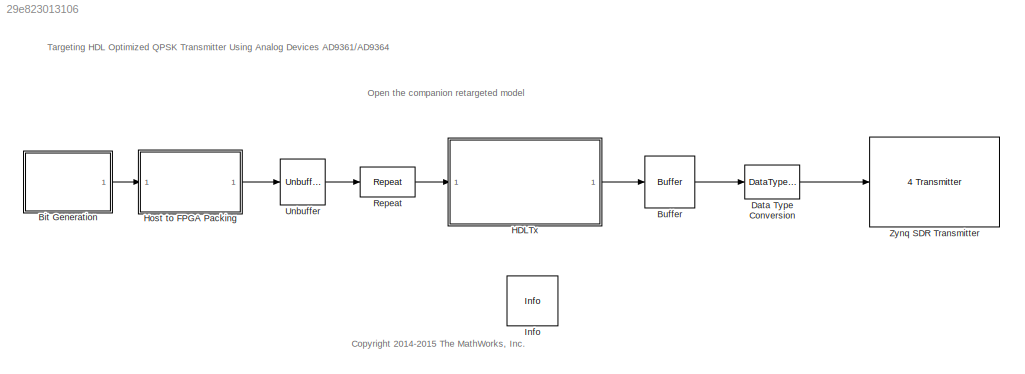
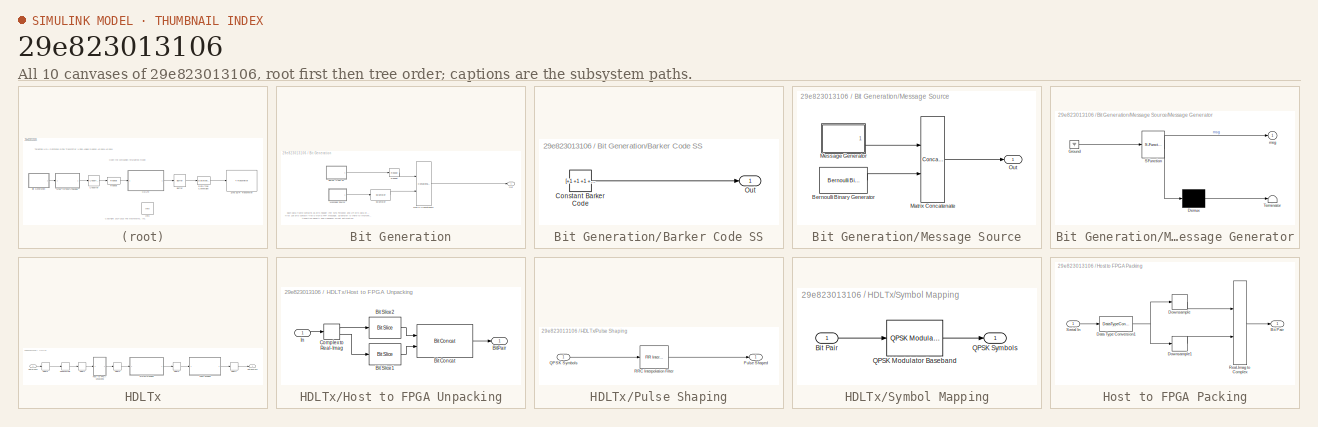
[diagram: thumbnail index - all 10 canvases of the model, root first then tree order]
MODEL slx_29e823013106
KIND model
CONFIG AbsTol = auto
CONFIG FixedStep = auto
CONFIG InitFcn = sdrzQPSKTxFPGA_params = zynqRadioQPSKTxFPGAAD9361AD9364SL_init;
CONFIG MaxStep = auto
CONFIG MinStep = auto
CONFIG PreLoadFcn = sdrzQPSKTxFPGA_params = zynqRadioQPSKTxFPGAAD9361AD9364SL_init;
CONFIG RelTol = 1e-3
CONFIG SampleTimeConstraint = Unconstrained
CONFIG Solver = FixedStepDiscrete
CONFIG SolverMode = SingleTasking
CONFIG SolverName = FixedStepDiscrete
CONFIG StartTime = 0.0
CONFIG StopTime = inf
BLOCK [SubSystem] Bit Generation
  Ports = [0, 1]
  RequestExecContextInheritance = off
  Variant = off
BLOCK [SubSystem] Bit Generation/Barker Code SS
  Ports = [0, 1]
  RequestExecContextInheritance = off
  Variant = off
BLOCK [Constant] Bit Generation/Barker Code SS/Constant Barker Code
  OutDataTypeStr = double
  Value = [+1 +1 +1 +1 +1 -1 -1 +1 +1 -1 +1 -1 +1\n].' > 0  % Bipolar to Unipolar Conversion
  VectorParams1D = off
BLOCK [Outport] Bit Generation/Barker Code SS/Out
  IconDisplay = Port number
BLOCK [Concatenate] Bit Generation/Matrix Concatenate
  Mode = Multidimensional array
  Ports = [2, 1]
BLOCK [SubSystem] Bit Generation/Message Source
  Ports = [0, 1]
  RequestExecContextInheritance = off
  Variant = off
BLOCK [Reference] Bit Generation/Message Source/Bernoulli Binary Generator  REF=commrandsrc3/Bernoulli Binary
Generator
  Ports = [0, 1]
  SourceBlock = commrandsrc3/Bernoulli Binary\nGenerator
  SourceType = Bernoulli Binary Generator
BLOCK [Concatenate] Bit Generation/Message Source/Matrix Concatenate
  Mode = Multidimensional array
  Ports = [2, 1]
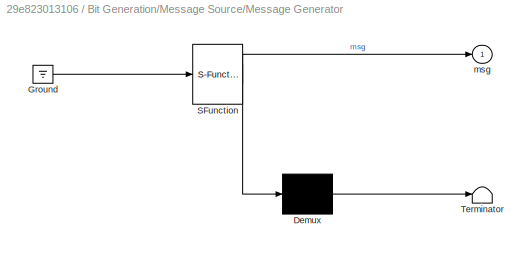
BLOCK [SubSystem] Bit Generation/Message Source/Message Generator
  ErrorFcn = Stateflow.Translate.translate
  PermitHierarchicalResolution = ExplicitOnly
  Ports = [0, 1]
  RequestExecContextInheritance = off
  SFBlockType = MATLAB Function
  TreatAsAtomicUnit = on
  Variant = off
BLOCK [Demux] Bit Generation/Message Source/Message Generator/ Demux 
  Outputs = 1
  Ports = [1, 1]
BLOCK [Ground] Bit Generation/Message Source/Message Generator/ Ground 
BLOCK [S-Function] Bit Generation/Message Source/Message Generator/ SFunction 
  EnableBusSupport = off
  FunctionName = sf_sfun
  PortCounts = [1 2]
  Ports = [1, 2]
  SFunctionDeploymentMode = off
  Tag = Stateflow S-Function zynqRadioQPSKTxFPGAAD9361AD9364SL 1
BLOCK [Terminator] Bit Generation/Message Source/Message Generator/ Terminator 
BLOCK [Outport] Bit Generation/Message Source/Message Generator/msg
  IconDisplay = Port number
BLOCK [Outport] Bit Generation/Message Source/Out
  IconDisplay = Port number
BLOCK [Outport] Bit Generation/Out
  IconDisplay = Port number
BLOCK [Reference] Bit Generation/Repeat  REF=dspsigops/Repeat
  Ports = [1, 1]
  SourceBlock = dspsigops/Repeat
  SourceType = Repeat
  UserDataPersistent = on
BLOCK [Reference] Bit Generation/Scrambler  REF=commsequence2/Scrambler
  Ports = [1, 1]
  SourceBlock = commsequence2/Scrambler
  SourceType = Scrambler
BLOCK [Buffer] Buffer
  N = 4000
  OutputFrames = off
  TreatMby1Signals = One channel
BLOCK [DataTypeConversion] Data Type Conversion
  ConvertRealWorld = Stored Integer (SI)
  OutDataTypeStr = int16
  RndMeth = Floor
  SaturateOnIntegerOverflow = off
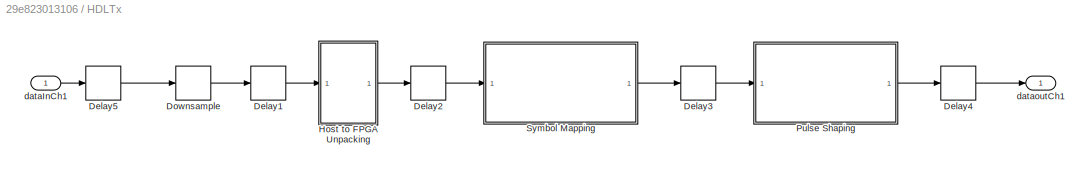
BLOCK [SubSystem] HDLTx
  Ports = [1, 1]
  RequestExecContextInheritance = off
  Variant = off
BLOCK [Delay] HDLTx/Delay1
  DelayLength = 1
  InitialCondition = 0
  InputPortMap = u0
  Ports = [1, 1]
BLOCK [Delay] HDLTx/Delay2
  DelayLength = 1
  InitialCondition = 0
  InputPortMap = u0
  Ports = [1, 1]
BLOCK [Delay] HDLTx/Delay3
  DelayLength = 1
  InitialCondition = 0
  InputPortMap = u0
  Ports = [1, 1]
BLOCK [Delay] HDLTx/Delay4
  DelayLength = 1
  InitialCondition = 0
  InputPortMap = u0
  Ports = [1, 1]
BLOCK [Delay] HDLTx/Delay5
  DelayLength = 1
  InitialCondition = 0
  InputPortMap = u0
  Ports = [1, 1]
BLOCK [DownSample] HDLTx/Downsample
  InputProcessing = Elements as channels (sample based)
  N = sdrzQPSKTxFPGA_params.Upsampling
  RateOptions = Allow multirate processing
  UserDataPersistent = on
BLOCK [SubSystem] HDLTx/Host to FPGA Unpacking
  Ports = [1, 1]
  RequestExecContextInheritance = off
  Variant = off
BLOCK [Reference] HDLTx/Host to FPGA Unpacking/Bit Concat  REF=hdlsllib/HDL Operations/Bit Concat
  Ports = [2, 1]
  SourceBlock = hdlsllib/HDL Operations/Bit Concat
  SourceType = Bit Concat
BLOCK [Reference] HDLTx/Host to FPGA Unpacking/Bit Slice1  REF=hdlsllib/HDL Operations/Bit Slice
  Ports = [1, 1]
  SourceBlock = hdlsllib/HDL Operations/Bit Slice
  SourceType = Bit Slice
BLOCK [Reference] HDLTx/Host to FPGA Unpacking/Bit Slice2  REF=hdlsllib/HDL Operations/Bit Slice
  Ports = [1, 1]
  SourceBlock = hdlsllib/HDL Operations/Bit Slice
  SourceType = Bit Slice
BLOCK [Outport] HDLTx/Host to FPGA Unpacking/BitPair
  IconDisplay = Port number
BLOCK [ComplexToRealImag] HDLTx/Host to FPGA Unpacking/Complex to Real-Imag
  Ports = [1, 2]
BLOCK [Inport] HDLTx/Host to FPGA Unpacking/In
  IconDisplay = Port number
BLOCK [SubSystem] HDLTx/Pulse Shaping
  Ports = [1, 1]
  RequestExecContextInheritance = off
  Variant = off
BLOCK [Outport] HDLTx/Pulse Shaping/Pulse Shaped
  IconDisplay = Port number
BLOCK [Inport] HDLTx/Pulse Shaping/QPSK Symbols
  IconDisplay = Port number
BLOCK [Reference] HDLTx/Pulse Shaping/RRC Interpolation Filter  REF=dspmlti4/FIR
Interpolation
  Ports = [1, 1]
  SourceBlock = dspmlti4/FIR\nInterpolation
  SourceType = FIR Interpolation
  UserDataPersistent = on
BLOCK [SubSystem] HDLTx/Symbol Mapping
  Ports = [1, 1]
  RequestExecContextInheritance = off
  Variant = off
BLOCK [Inport] HDLTx/Symbol Mapping/Bit Pair
  IconDisplay = Port number
BLOCK [Reference] HDLTx/Symbol Mapping/QPSK Modulator Baseband  REF=commdigbbndpm3/QPSK
Modulator
Baseband
  Ports = [1, 1]
  SourceBlock = commdigbbndpm3/QPSK\nModulator\nBaseband
  SourceType = QPSK Modulator Baseband
BLOCK [Outport] HDLTx/Symbol Mapping/QPSK Symbols
  IconDisplay = Port number
BLOCK [Inport] HDLTx/dataInCh1
  IconDisplay = Port number
BLOCK [Outport] HDLTx/dataoutCh1
  IconDisplay = Port number
BLOCK [SubSystem] Host to FPGA Packing
  Ports = [1, 1]
  RequestExecContextInheritance = off
  Variant = off
BLOCK [Outport] Host to FPGA Packing/Bit Pair
  IconDisplay = Port number
BLOCK [DataTypeConversion] Host to FPGA Packing/Data Type Conversion1
  OutDataTypeStr = int16
  RndMeth = Floor
  SaturateOnIntegerOverflow = off
BLOCK [DownSample] Host to FPGA Packing/Downsample
  RateOptions = Allow multirate processing
  UserDataPersistent = on
BLOCK [DownSample] Host to FPGA Packing/Downsample1
  RateOptions = Allow multirate processing
  UserDataPersistent = on
  phase = 1
BLOCK [RealImagToComplex] Host to FPGA Packing/Real-Imag to Complex
  Ports = [2, 1]
BLOCK [Inport] Host to FPGA Packing/Serial In
  IconDisplay = Port number
BLOCK [Reference] Info  REF=sdrzblksprivate/Info
  Ports = []
  SourceBlock = sdrzblksprivate/Info
  SourceType = Info
BLOCK [Reference] Repeat  REF=dspsigops/Repeat
  Ports = [1, 1]
  SourceBlock = dspsigops/Repeat
  SourceType = Repeat
  UserDataPersistent = on
BLOCK [Unbuffer] Unbuffer
  Ports = [1, 1]
  SampleBasedProcessing = Same as frame based
BLOCK [Reference] Zynq SDR Transmitter  REF=zc706fmc234_lib/ZC706 and 
FMCOMMS2//3//4 
Transmitter
  Ports = [1]
  SourceBlock = zc706fmc234_lib/ZC706 and \nFMCOMMS2//3//4 \nTransmitter
  SourceType = comm.internal.SDRTxZC706FMC234SL
ANNOTATION (root): <copyright redacted>
ANNOTATION (root): Open the companion retargeted model
ANNOTATION (root): Targeting HDL Optimized QPSK Transmitter Using Analog Devices AD9361/AD9364
ANNOTATION Bit Generation: Each data frame contains 26 bits header (For Sync Purpose) and 174 bits data bits, first 105 bits contain "Hello world ###" message. Scrambler is there to improve data transition density and frequency offset estimation.
LINE Bit Generation/Barker Code SS/Constant Barker Code:1 -> Bit Generation/Barker Code SS/Out:1
LINE Bit Generation/Barker Code SS:1 -> Bit Generation/Repeat:1
LINE Bit Generation/Matrix Concatenate:1 -> Bit Generation/Out:1
LINE Bit Generation/Message Source/Bernoulli Binary Generator:1 -> Bit Generation/Message Source/Matrix Concatenate:2
LINE Bit Generation/Message Source/Matrix Concatenate:1 -> Bit Generation/Message Source/Out:1
LINE Bit Generation/Message Source/Message Generator:1 -> Bit Generation/Message Source/Matrix Concatenate:1
LINE Bit Generation/Message Source:1 -> Bit Generation/Scrambler:1
LINE Bit Generation/Repeat:1 -> Bit Generation/Matrix Concatenate:1
LINE Bit Generation/Scrambler:1 -> Bit Generation/Matrix Concatenate:2
LINE Bit Generation:1 -> Host to FPGA Packing:1
LINE Buffer:1 -> Data Type Conversion:1
LINE Data Type Conversion:1 -> Zynq SDR Transmitter:1
LINE HDLTx/Delay1:1 -> HDLTx/Host to FPGA Unpacking:1
LINE HDLTx/Delay2:1 -> HDLTx/Symbol Mapping:1
LINE HDLTx/Delay3:1 -> HDLTx/Pulse Shaping:1
LINE HDLTx/Delay4:1 -> HDLTx/dataoutCh1:1
LINE HDLTx/Delay5:1 -> HDLTx/Downsample:1
LINE HDLTx/Downsample:1 -> HDLTx/Delay1:1
LINE HDLTx/Host to FPGA Unpacking/Bit Concat:1 -> HDLTx/Host to FPGA Unpacking/BitPair:1
LINE HDLTx/Host to FPGA Unpacking/Bit Slice1:1 -> HDLTx/Host to FPGA Unpacking/Bit Concat:2
LINE HDLTx/Host to FPGA Unpacking/Bit Slice2:1 -> HDLTx/Host to FPGA Unpacking/Bit Concat:1
LINE HDLTx/Host to FPGA Unpacking/Complex to Real-Imag:1 -> HDLTx/Host to FPGA Unpacking/Bit Slice2:1
LINE HDLTx/Host to FPGA Unpacking/Complex to Real-Imag:2 -> HDLTx/Host to FPGA Unpacking/Bit Slice1:1
LINE HDLTx/Host to FPGA Unpacking/In:1 -> HDLTx/Host to FPGA Unpacking/Complex to Real-Imag:1
LINE HDLTx/Host to FPGA Unpacking:1 -> HDLTx/Delay2:1
LINE HDLTx/Pulse Shaping/QPSK Symbols:1 -> HDLTx/Pulse Shaping/RRC Interpolation Filter:1
LINE HDLTx/Pulse Shaping/RRC Interpolation Filter:1 -> HDLTx/Pulse Shaping/Pulse Shaped:1
LINE HDLTx/Pulse Shaping:1 -> HDLTx/Delay4:1
LINE HDLTx/Symbol Mapping/Bit Pair:1 -> HDLTx/Symbol Mapping/QPSK Modulator Baseband:1
LINE HDLTx/Symbol Mapping/QPSK Modulator Baseband:1 -> HDLTx/Symbol Mapping/QPSK Symbols:1
LINE HDLTx/Symbol Mapping:1 -> HDLTx/Delay3:1
LINE HDLTx/dataInCh1:1 -> HDLTx/Delay5:1
LINE HDLTx:1 -> Buffer:1
NET Host to FPGA Packing/Data Type Conversion1:1 -> Host to FPGA Packing/Downsample1:1, Host to FPGA Packing/Downsample:1
LINE Host to FPGA Packing/Downsample1:1 -> Host to FPGA Packing/Real-Imag to Complex:2
LINE Host to FPGA Packing/Downsample:1 -> Host to FPGA Packing/Real-Imag to Complex:1
LINE Host to FPGA Packing/Real-Imag to Complex:1 -> Host to FPGA Packing/Bit Pair:1
LINE Host to FPGA Packing/Serial In:1 -> Host to FPGA Packing/Data Type Conversion1:1
LINE Host to FPGA Packing:1 -> Unbuffer:1
LINE Repeat:1 -> HDLTx:1
LINE Unbuffer:1 -> Repeat:1
note: NET lines group one-source signal fan-out (src -> all destinations, sorted); 1:1 wires keep LINE
CHART Bit Generation/Message Source/Message Generator states=1 transitions=1
  STATE_LABEL 'eML_blk_kernel()'
  STATE_LABEL "SCRIPT:\nfunction msg = genMsg\n%#codegen\npersistent msgStrSet count;\nif isempty(msgStrSet)\n    count = 0;\n    msgStrSet = ['Hello world 000';...\n              'Hello world 001';...\n              'Hello world 002';...\n              'Hello world 003';...\n              'Hello world 004';...\n              'Hello world 005';...\n              'Hello world 006';...\n              'Hello world 007';...\n    ...<+3462ch>"
